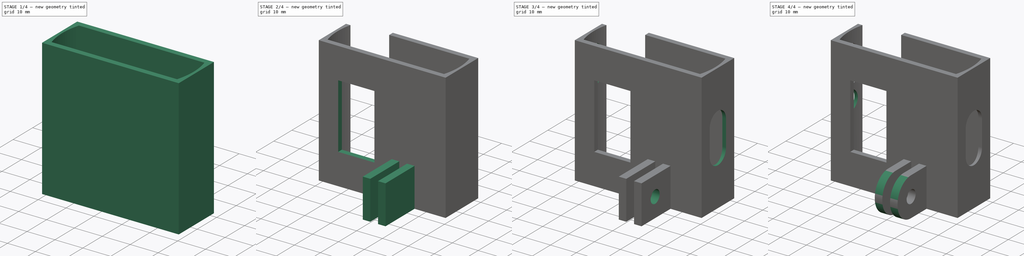
[diagram: build sequence overview — one tinted view per stage of 4, left to right]
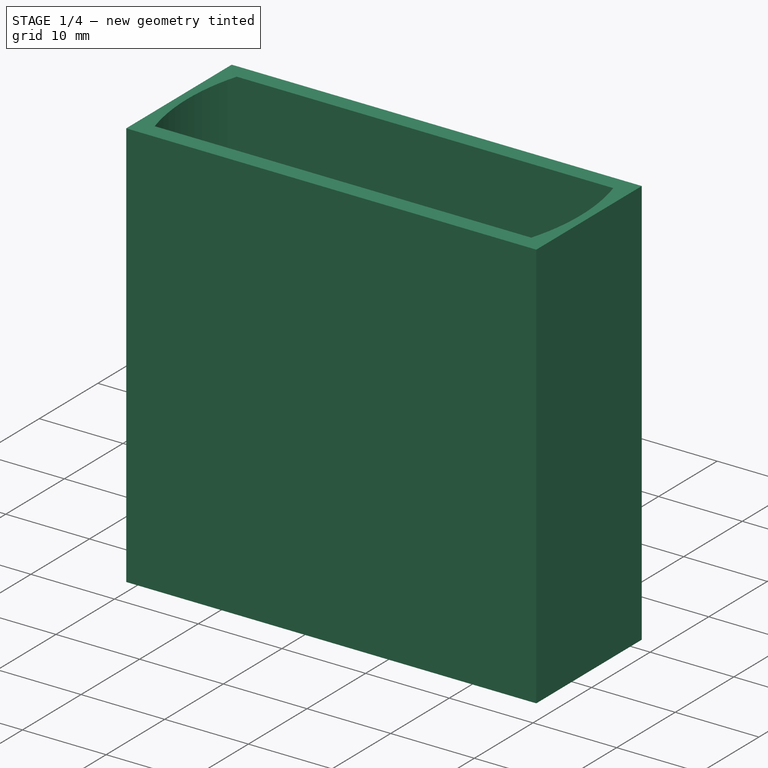
[diagram: stage 1 of 4 — iso view after this stage's code; geometry added in this stage tinted green]
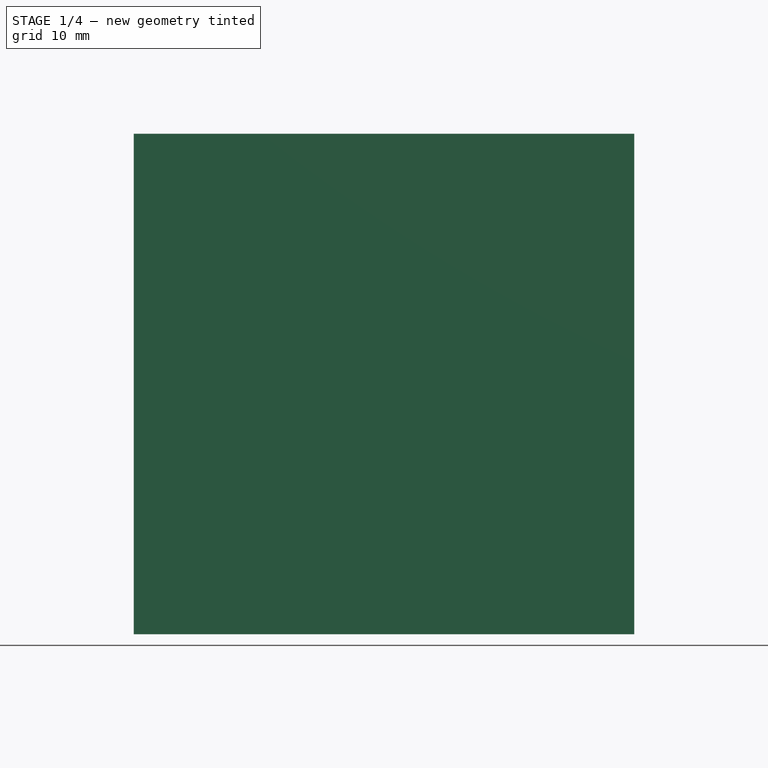
[diagram: stage 1 of 4 — front view after this stage's code; geometry added in this stage tinted green]
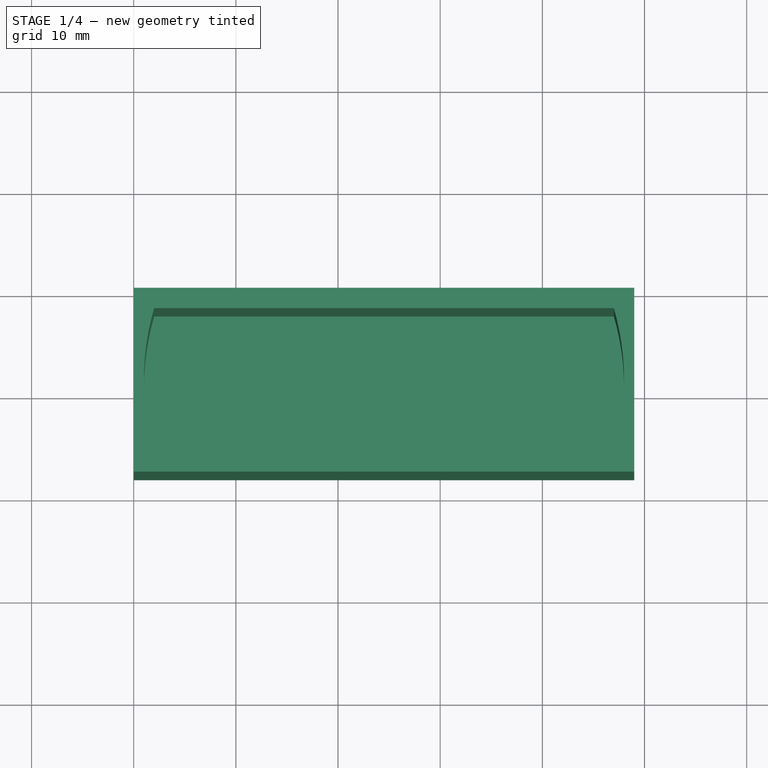
[diagram: stage 1 of 4 — top view after this stage's code; geometry added in this stage tinted green]
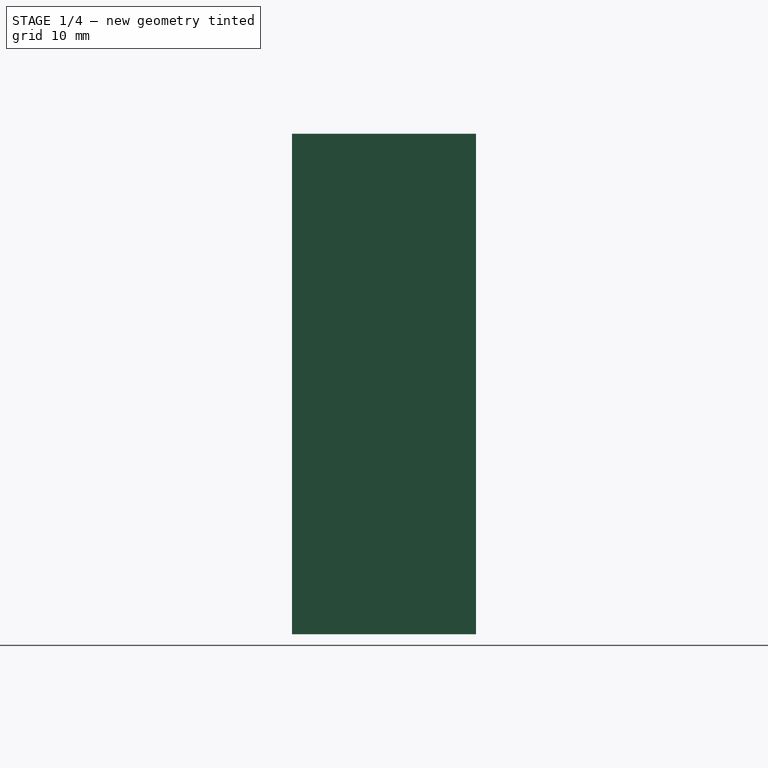
[diagram: stage 1 of 4 — right view after this stage's code; geometry added in this stage tinted green]
FCSTD DOCUMENT  (FreeCAD 0.21R33694 (Git))
Label: RodeMicMount
License: All rights reserved
LicenseURL: https://en.wikipedia.org/wiki/All_rights_reserved
objects: Sketcher::SketchObject×9, PartDesign::Pocket×7, PartDesign::Pad×2, PartDesign::Fillet×1, PartDesign::Body×1
note: 30 computed .brp shape members not serialized (recipe doc carries the construction recipe); baked Part::Feature solids carry a one-line shape summary decoded from their .brp

FEATURE [Sketcher::SketchObject] Sketch  label="Outer profile"
  FullyConstrained = true
  MapMode = 5
  Placement = pos=(0,0,0) rot=(1,0,0;1.5708rad)
  Support = -> [XZ_Plane]
  sketch-geometry (4):
    g0: LineSegment StartX=0 StartY=49 StartZ=0 EndX=49 EndY=49 EndZ=0
    g1: LineSegment StartX=49 StartY=49 StartZ=0 EndX=49 EndY=0 EndZ=0
    g2: LineSegment StartX=49 StartY=0 StartZ=0 EndX=0 EndY=0 EndZ=0
    g3: LineSegment StartX=0 StartY=0 StartZ=0 EndX=0 EndY=49 EndZ=0
  constraints (11):
    c: Coincident(g0,g1)
    c: Coincident(g1,g2)
    c: Coincident(g2,g3)
    c: Coincident(g3,g0)
    c: Horizontal(g0)
    c: Horizontal(g2)
    c: Vertical(g1)
    c: Vertical(g3)
    c: DistanceX(g0,g0) = 49
    c: Equal(g0,g1)
    c: Coincident(g2,g-1)
FEATURE [PartDesign::Pad] Pad
  Direction = (0,-1,-2e-16)
  Length = 18
  Length2 = 10
  Placement = pos=(0,0,0) rot=(1,0,0;1.5708rad)
  Profile = -> Sketch
  ReferenceAxis = -> Sketch [N_Axis]
  Type = 0
FEATURE [Sketcher::SketchObject] Sketch001  label="Mic profile"
  ExternalGeometry = -> [Pad]
  FullyConstrained = true
  MapMode = 5
  Placement = pos=(0,0,49) rot=(0,0,1;3.14159rad)
  Support = -> [Pad]
  sketch-geometry (6):
    g0: LineSegment StartX=-47 StartY=16 StartZ=0 EndX=-2 EndY=16 EndZ=0
    g1: LineSegment StartX=-2 StartY=2 StartZ=0 EndX=-47 EndY=2 EndZ=0
    g2: ArcOfCircle CenterX=-23 CenterY=9 CenterZ=0 NormalX=0 NormalY=0 NormalZ=1 AngleXU=0 Radius=25 StartAngle=2.8578 EndAngle=3.42539
    g3: ArcOfCircle CenterX=-26 CenterY=9 CenterZ=0 NormalX=0 NormalY=0 NormalZ=1 AngleXU=0 Radius=25 StartAngle=5.99939 EndAngle=6.56698
    g4: LineSegment StartX=-48 StartY=16 StartZ=0 EndX=-48 EndY=2 EndZ=0
    g5: LineSegment StartX=-1 StartY=16 StartZ=0 EndX=-1 EndY=2 EndZ=0
  constraints (22):
    c: Horizontal(g0)
    c: Horizontal(g1)
    c: Coincident(g2,g0)
    c: Coincident(g2,g1)
    c: Coincident(g3,g0)
    c: DistanceX(g0,g0) = 45
    c: Equal(g1,g0)
    c: Vertical(g0,g1)
    c: Coincident(g3,g1)
    c: DistanceY(g1,g0) = 14
    c: Vertical(g4)
    c: Tangent(g4,g2)
    c: Horizontal(g4,g0)
    c: DistanceX(g4,g0) = 1
    c: Vertical(g5)
    c: DistanceX(g0,g5) = 1
    c: Tangent(g3,g5)
    c: Horizontal(g0,g5)
    c: Horizontal(g1,g5)
    c: Horizontal(g1,g4)
    c: DistanceX(g1,g-6) = 2
    c: DistanceY(g-6,g1) = 2
FEATURE [PartDesign::Pocket] Pocket
  BaseFeature = -> Pad
  Direction = (0,2e-16,-1)
  Length = 47
  Length2 = 5
  Placement = pos=(0,0,0) rot=(1,0,0;1.5708rad)
  Profile = -> Sketch001
  ReferenceAxis = -> Sketch001 [N_Axis]
  Type = 0
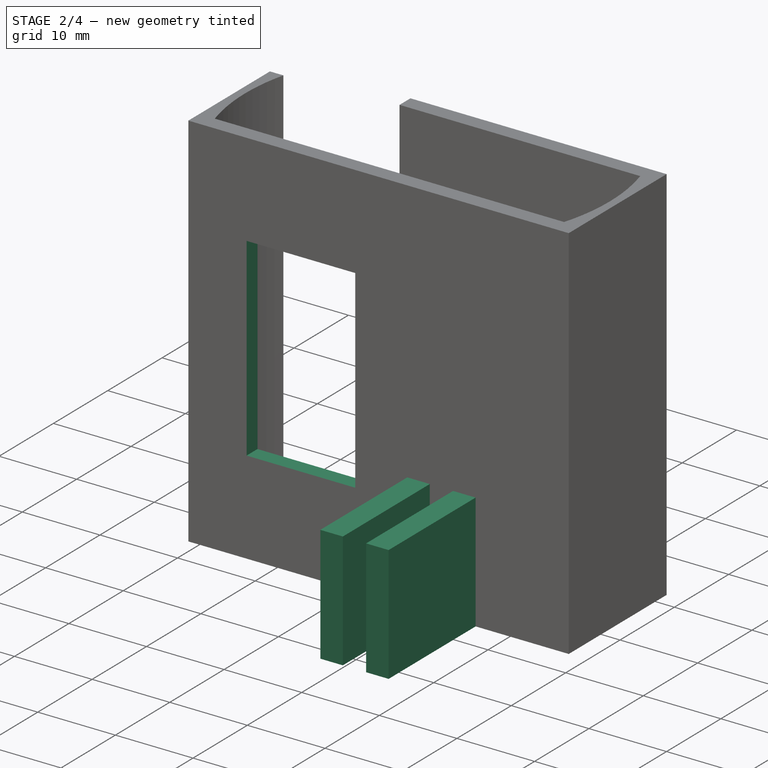
[diagram: stage 2 of 4 — iso view after this stage's code; geometry added in this stage tinted green]
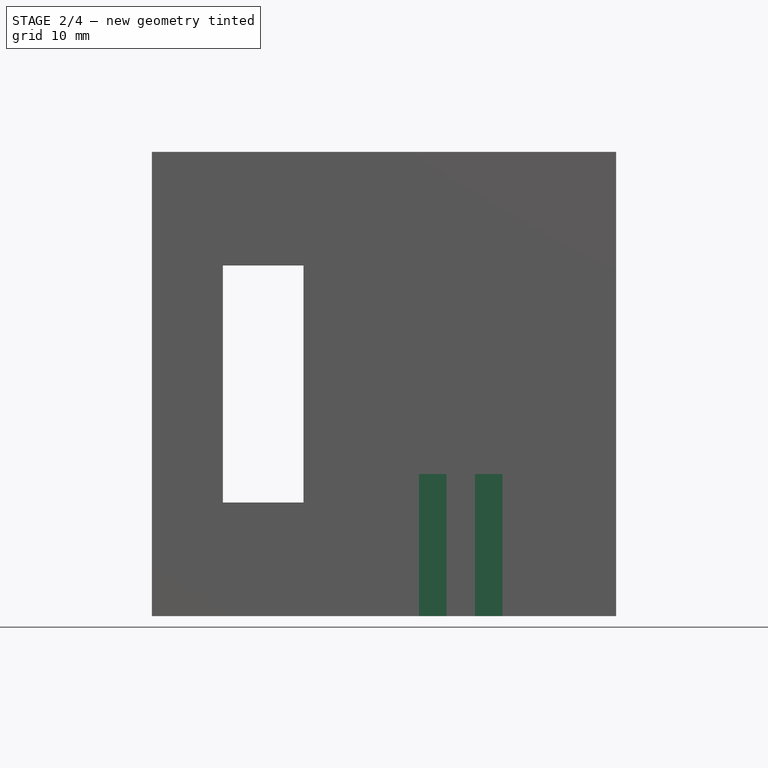
[diagram: stage 2 of 4 — front view after this stage's code; geometry added in this stage tinted green]
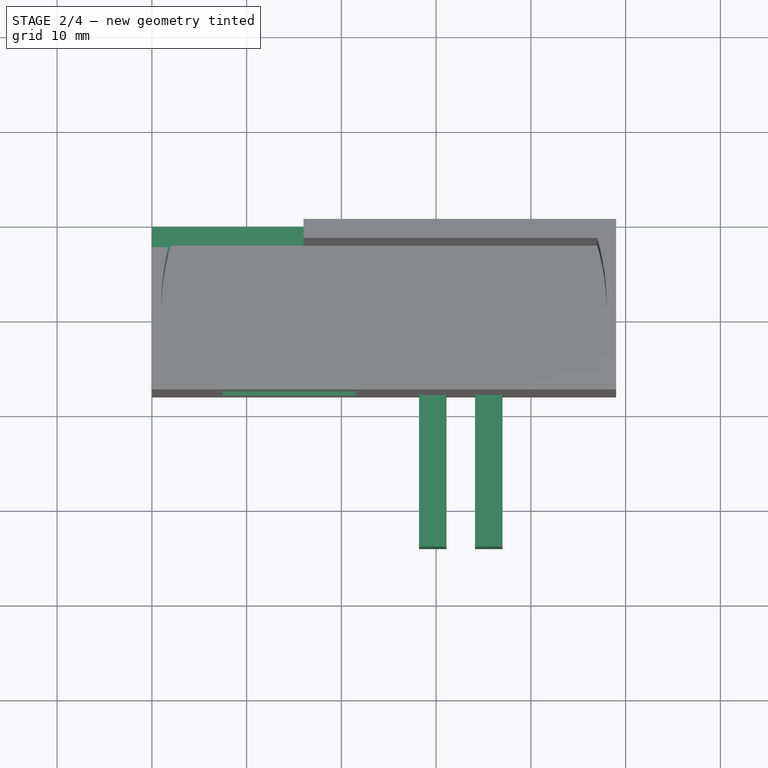
[diagram: stage 2 of 4 — top view after this stage's code; geometry added in this stage tinted green]
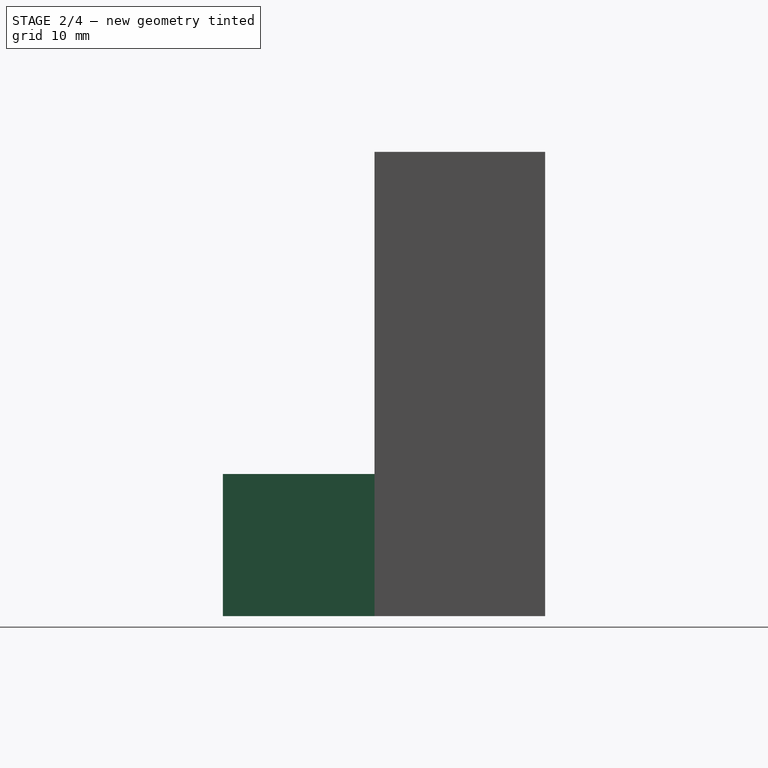
[diagram: stage 2 of 4 — right view after this stage's code; geometry added in this stage tinted green]
FEATURE [Sketcher::SketchObject] Sketch002  label="Display cutout"
  ExternalGeometry = -> [Pocket]
  FullyConstrained = true
  MapMode = 5
  Placement = pos=(0,-18,-4e-15) rot=(1,0,0;1.5708rad)
  Support = -> [Pocket]
  expr: Constraints[11] = (49 - 25) / 2
  sketch-geometry (4):
    g0: LineSegment StartX=7.5 StartY=37 StartZ=0 EndX=21.5 EndY=37 EndZ=0
    g1: LineSegment StartX=21.5 StartY=37 StartZ=0 EndX=21.5 EndY=12 EndZ=0
    g2: LineSegment StartX=21.5 StartY=12 StartZ=0 EndX=7.5 EndY=12 EndZ=0
    g3: LineSegment StartX=7.5 StartY=12 StartZ=0 EndX=7.5 EndY=37 EndZ=0
  constraints (12):
    c: Coincident(g0,g1)
    c: Coincident(g1,g2)
    c: Coincident(g2,g3)
    c: Coincident(g3,g0)
    c: Horizontal(g0)
    c: Horizontal(g2)
    c: Vertical(g1)
    c: Vertical(g3)
    c: DistanceX(g-6,g0) = 7.5
    c: DistanceX(g0,g0) = 14
    c: DistanceY(g1,g1) = 25
    c: DistanceY(g-6,g2) = 12
FEATURE [PartDesign::Pocket] Pocket001
  BaseFeature = -> Pocket
  Direction = (0,1,2e-16)
  Length = 5
  Length2 = 5
  Placement = pos=(0,0,0) rot=(1,0,0;1.5708rad)
  Profile = -> Sketch002
  ReferenceAxis = -> Sketch002 [N_Axis]
  Type = 0
FEATURE [Sketcher::SketchObject] Sketch003  label="Clip cutout"
  ExternalGeometry = -> [Pocket001]
  FullyConstrained = true
  MapMode = 5
  Placement = pos=(0,-1e-16,0) rot=(-1,0,0;1.5708rad)
  Support = -> [Pocket001]
  sketch-geometry (4):
    g0: LineSegment StartX=16 StartY=-49 StartZ=0 EndX=0 EndY=-49 EndZ=0
    g1: LineSegment StartX=0 StartY=-49 StartZ=0 EndX=0 EndY=-2.5 EndZ=0
    g2: LineSegment StartX=0 StartY=-2.5 StartZ=0 EndX=16 EndY=-2.5 EndZ=0
    g3: LineSegment StartX=16 StartY=-2.5 StartZ=0 EndX=16 EndY=-49 EndZ=0
  constraints (11):
    c: Horizontal(g0)
    c: Coincident(g0,g1)
    c: Vertical(g1)
    c: Coincident(g1,g2)
    c: Horizontal(g2)
    c: Vertical(g3)
    c: Coincident(g3,g0)
    c: DistanceX(g2,g2) = 16
    c: DistanceY(g1,g-4) = 2.5
    c: Coincident(g0,g-3)
    c: Coincident(g3,g2)
FEATURE [PartDesign::Pocket] Pocket002
  BaseFeature = -> Pocket001
  Direction = (0,-1,-2e-16)
  Length = 3
  Length2 = 5
  Placement = pos=(0,0,0) rot=(1,0,0;1.5708rad)
  Profile = -> Sketch003
  ReferenceAxis = -> Sketch003 [N_Axis]
  Type = 0
FEATURE [Sketcher::SketchObject] Sketch004  label="GoPro mount"
  ExternalGeometry = -> [Pocket002]
  FullyConstrained = true
  MapMode = 5
  Placement = pos=(0,-18,-4e-15) rot=(1,0,0;1.5708rad)
  Support = -> [Pocket002]
  sketch-geometry (8):
    g0: LineSegment StartX=28.2 StartY=15 StartZ=0 EndX=31.1 EndY=15 EndZ=0
    g1: LineSegment StartX=31.1 StartY=15 StartZ=0 EndX=31.1 EndY=3.6e-15 EndZ=0
    g2: LineSegment StartX=31.1 StartY=3.6e-15 StartZ=0 EndX=28.2 EndY=3.6e-15 EndZ=0
    g3: LineSegment StartX=28.2 StartY=3.6e-15 StartZ=0 EndX=28.2 EndY=15 EndZ=0
    g4: LineSegment StartX=34.1 StartY=15 StartZ=0 EndX=37 EndY=15 EndZ=0
    g5: LineSegment StartX=37 StartY=15 StartZ=0 EndX=37 EndY=3.6e-15 EndZ=0
    g6: LineSegment StartX=37 StartY=3.6e-15 StartZ=0 EndX=34.1 EndY=3.6e-15 EndZ=0
    g7: LineSegment StartX=34.1 StartY=3.6e-15 StartZ=0 EndX=34.1 EndY=15 EndZ=0
  constraints (24):
    c: Coincident(g0,g1)
    c: Coincident(g1,g2)
    c: Coincident(g2,g3)
    c: Coincident(g3,g0)
    c: Horizontal(g0)
    c: Horizontal(g2)
    c: Vertical(g1)
    c: Vertical(g3)
    c: Coincident(g4,g5)
    c: Coincident(g5,g6)
    c: Coincident(g6,g7)
    c: Coincident(g7,g4)
    c: Horizontal(g4)
    c: Horizontal(g6)
    c: Vertical(g5)
    c: Vertical(g7)
    c: Horizontal(g1,g6)
    c: Equal(g0,g4)
    c: Equal(g7,g1)
    c: DistanceX(g4,g4) = 2.9
    c: DistanceX(g0,g4) = 3
    c: Horizontal(g-3,g2)
    c: DistanceY(g5,g5) = 15
    c: DistanceX(g5,g-3) = 12
FEATURE [PartDesign::Pad] Pad001
  BaseFeature = -> Pocket002
  Direction = (0,-1,-2e-16)
  Length = 16
  Length2 = 10
  Placement = pos=(0,0,0) rot=(1,0,0;1.5708rad)
  Profile = -> Sketch004
  ReferenceAxis = -> Sketch004 [N_Axis]
  Type = 0
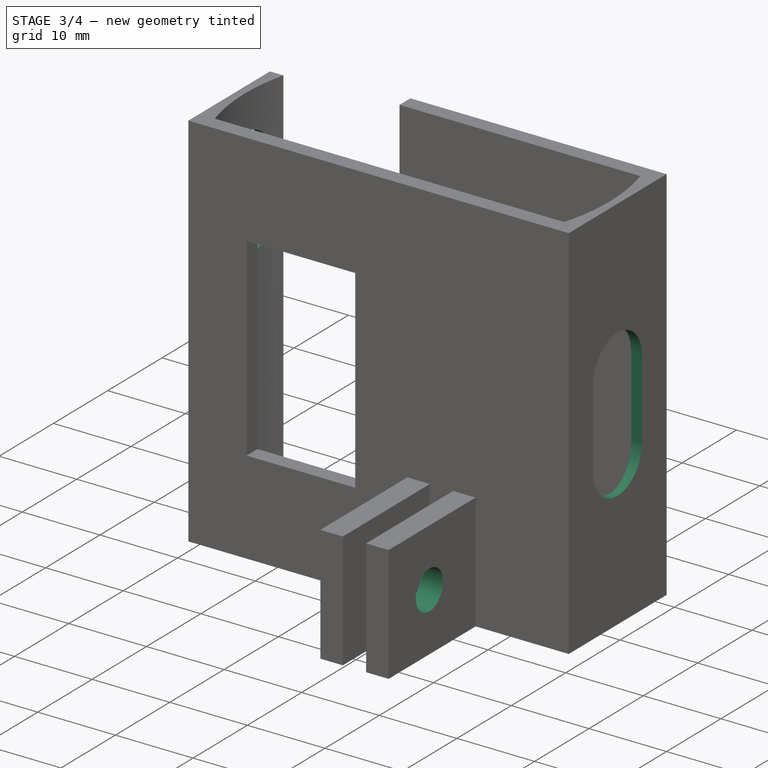
[diagram: stage 3 of 4 — iso view after this stage's code; geometry added in this stage tinted green]
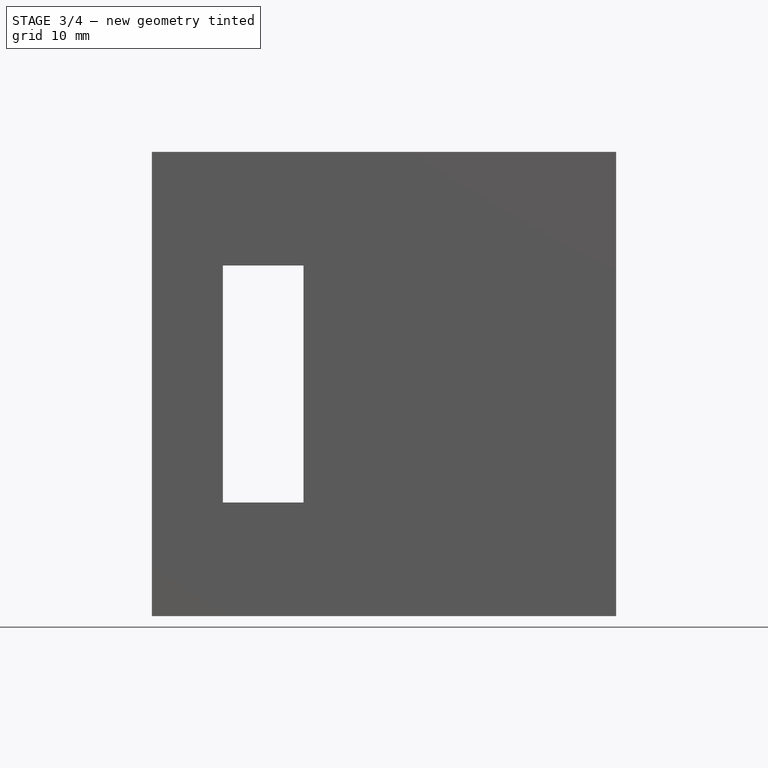
[diagram: stage 3 of 4 — front view after this stage's code; geometry added in this stage tinted green]
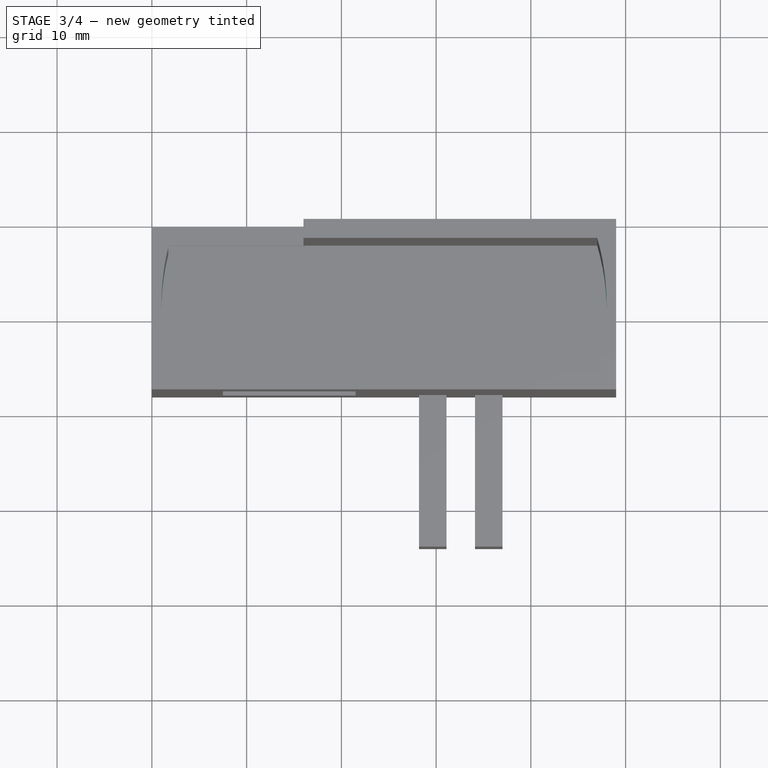
[diagram: stage 3 of 4 — top view after this stage's code; geometry added in this stage tinted green]
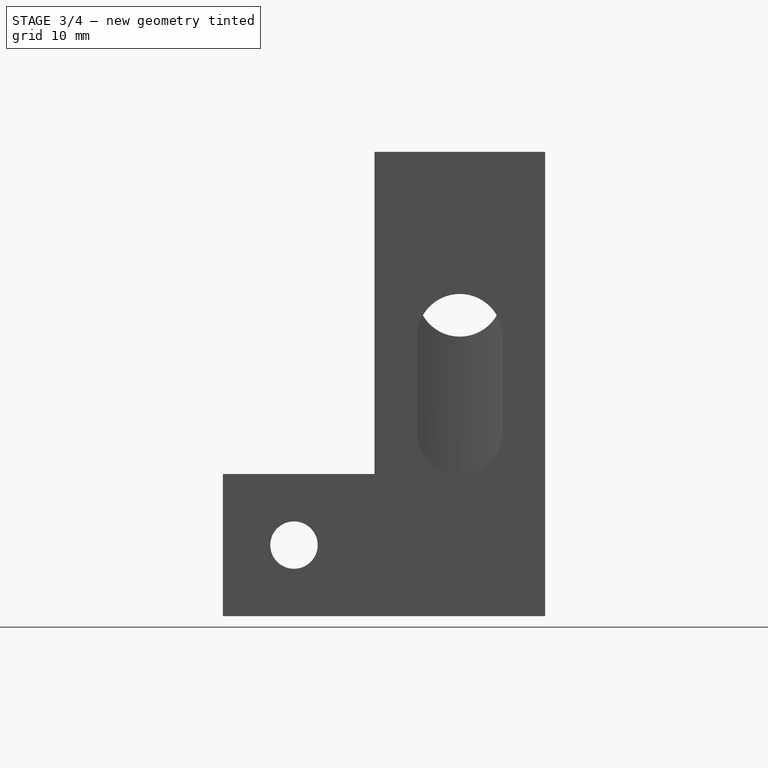
[diagram: stage 3 of 4 — right view after this stage's code; geometry added in this stage tinted green]
FEATURE [Sketcher::SketchObject] Sketch005  label="GoPro mount hole"
  ExternalGeometry = -> [Pad001]
  FullyConstrained = true
  MapMode = 5
  Placement = pos=(28.2,0,0) rot=(0.707107,0,-0.707107;3.14159rad)
  Support = -> [Pad001]
  expr: Constraints[1] = 15 / 2
  expr: Constraints[2] = 5 + 5 / 2
  sketch-geometry (1):
    g0: Circle CenterX=-7.5 CenterY=26.5 CenterZ=0 NormalX=0 NormalY=0 NormalZ=1 AngleXU=0 Radius=2.5
  constraints (3):
    c: Diameter(g0) = 5
    c: DistanceX(g-3,g0) = 7.5
    c: DistanceY(g0,g-3) = 7.5
FEATURE [PartDesign::Pocket] Pocket003
  BaseFeature = -> Pad001
  Direction = (1,0,2e-16)
  Length = 10
  Length2 = 5
  Placement = pos=(0,0,0) rot=(1,0,0;1.5708rad)
  Profile = -> Sketch005
  ReferenceAxis = -> Sketch005 [N_Axis]
  Type = 1
FEATURE [Sketcher::SketchObject] Sketch006  label="Power button cutout"
  FullyConstrained = true
  MapMode = 5
  Placement = pos=(49,0,0) rot=(0.707107,0,0.707107;3.14159rad)
  Support = -> [Pocket003]
  expr: Constraints[8] = (49 - 10) / 2
  sketch-geometry (4):
    g0: ArcOfCircle CenterX=19.5 CenterY=9 CenterZ=0 NormalX=0 NormalY=0 NormalZ=1 AngleXU=0 Radius=4.5 StartAngle=1.5708 EndAngle=4.71239
    g1: ArcOfCircle CenterX=29.5 CenterY=9 CenterZ=0 NormalX=0 NormalY=0 NormalZ=1 AngleXU=0 Radius=4.5 StartAngle=4.71239 EndAngle=7.85398
    g2: LineSegment StartX=19.5 StartY=4.5 StartZ=0 EndX=29.5 EndY=4.5 EndZ=0
    g3: LineSegment StartX=29.5 StartY=13.5 StartZ=0 EndX=19.5 EndY=13.5 EndZ=0
  constraints (10):
    c: Tangent(g0,g2) = -1.5708
    c: Tangent(g2,g1) = -1.5708
    c: Tangent(g1,g3) = -1.5708
    c: Tangent(g3,g0) = -1.5708
    c: Equal(g0,g1)
    c: Horizontal(g2)
    c: DistanceY(g1,g1) = 9
    c: DistanceY(g-1,g0) = 4.5
    c: DistanceX(g-1,g0) = 19.5
    c: DistanceX(g0,g1) = 10
FEATURE [PartDesign::Pocket] Pocket004
  BaseFeature = -> Pocket003
  Direction = (-1,0,2e-16)
  Length = 5
  Length2 = 5
  Placement = pos=(0,0,0) rot=(1,0,0;1.5708rad)
  Profile = -> Sketch006
  ReferenceAxis = -> Sketch006 [N_Axis]
  Type = 0
FEATURE [Sketcher::SketchObject] Sketch007  label="Mic/gain cutout"
  FullyConstrained = true
  MapMode = 5
  Placement = pos=(0,0,0) rot=(0.707107,0,-0.707107;3.14159rad)
  Support = -> [Pocket004]
  expr: Constraints[6] = 18 / 2
  expr: Constraints[8] = 49 - 15
  sketch-geometry (4):
    g0: ArcOfCircle CenterX=-40 CenterY=9 CenterZ=0 NormalX=0 NormalY=0 NormalZ=1 AngleXU=0 Radius=4.5 StartAngle=1.5708 EndAngle=4.71239
    g1: ArcOfCircle CenterX=-34 CenterY=9 CenterZ=0 NormalX=0 NormalY=0 NormalZ=1 AngleXU=0 Radius=4.5 StartAngle=4.71239 EndAngle=7.85398
    g2: LineSegment StartX=-40 StartY=4.5 StartZ=0 EndX=-34 EndY=4.5 EndZ=0
    g3: LineSegment StartX=-34 StartY=13.5 StartZ=0 EndX=-40 EndY=13.5 EndZ=0
  constraints (10):
    c: Tangent(g0,g2) = -1.5708
    c: Tangent(g2,g1) = -1.5708
    c: Tangent(g1,g3) = -1.5708
    c: Tangent(g3,g0) = -1.5708
    c: Equal(g0,g1)
    c: Horizontal(g2)
    c: DistanceY(g-1,g1) = 9
    c: DistanceY(g1,g1) = 9
    c: DistanceX(g1,g-1) = 34
    c: DistanceX(g0,g1) = 6
FEATURE [PartDesign::Pocket] Pocket005
  BaseFeature = -> Pocket004
  Direction = (1,0,2e-16)
  Length = 5
  Length2 = 5
  Placement = pos=(0,0,0) rot=(1,0,0;1.5708rad)
  Profile = -> Sketch007
  ReferenceAxis = -> Sketch007 [N_Axis]
  Type = 0
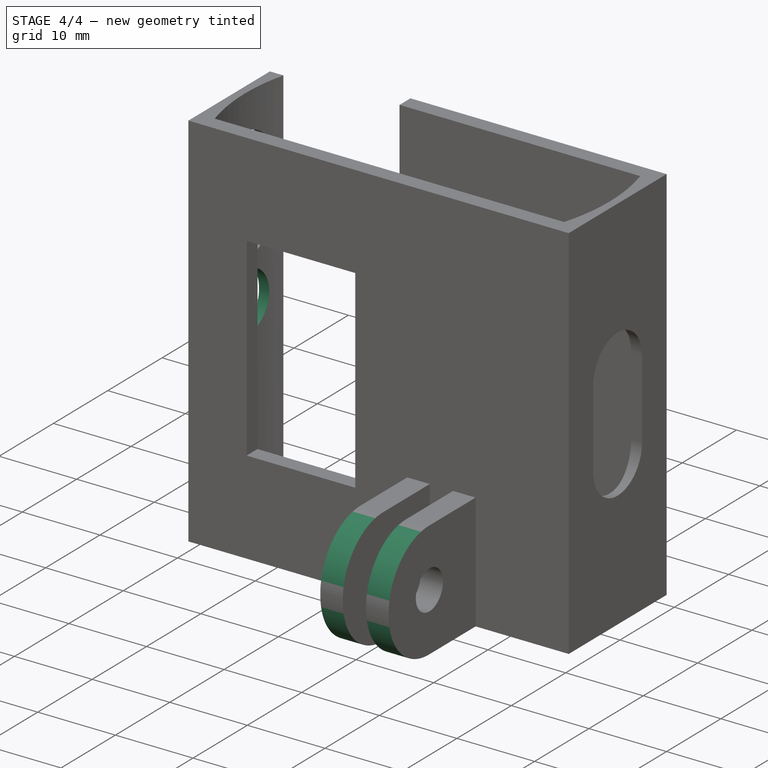
[diagram: stage 4 of 4 — iso view after this stage's code; geometry added in this stage tinted green]
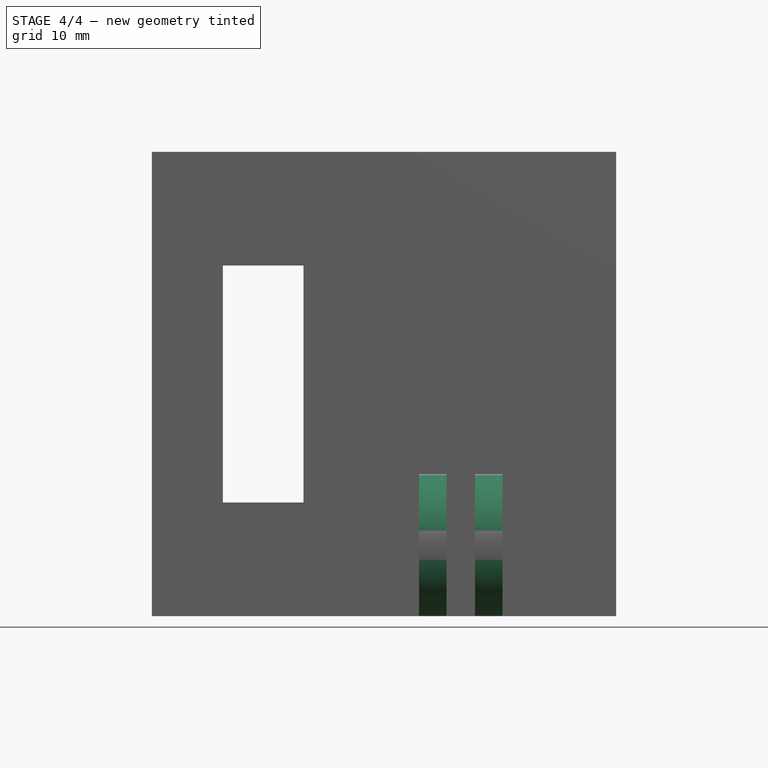
[diagram: stage 4 of 4 — front view after this stage's code; geometry added in this stage tinted green]
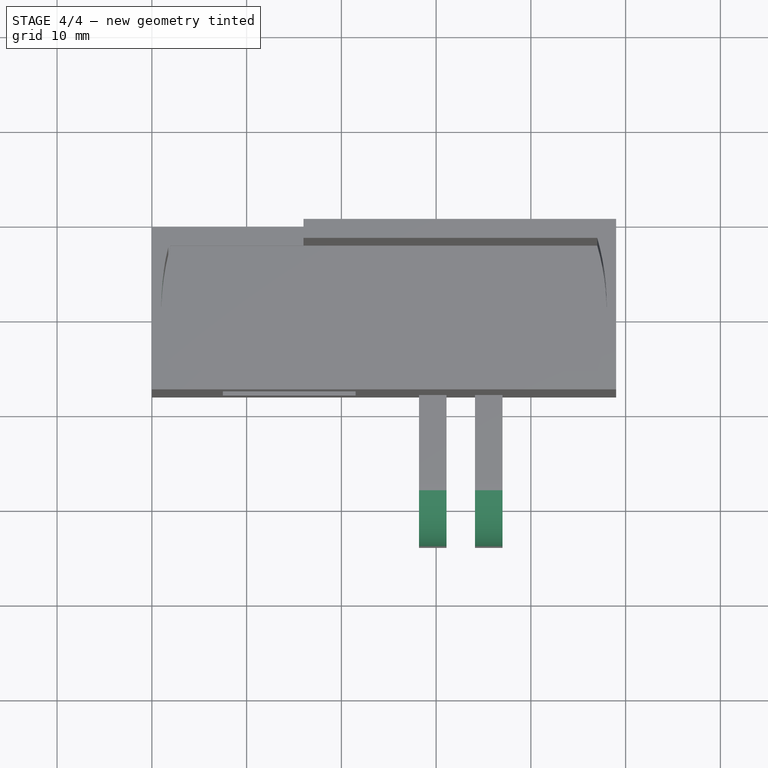
[diagram: stage 4 of 4 — top view after this stage's code; geometry added in this stage tinted green]
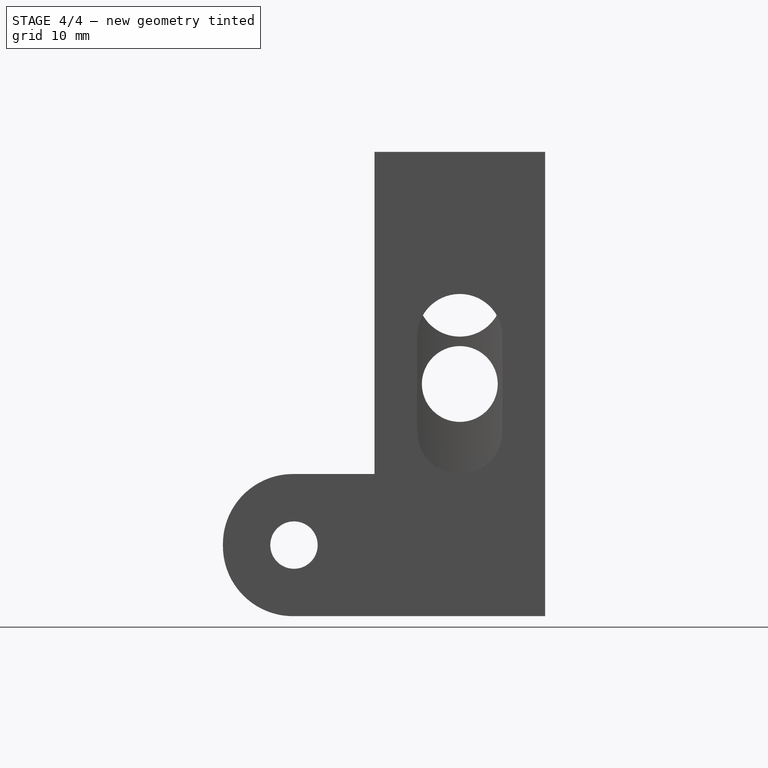
[diagram: stage 4 of 4 — right view after this stage's code; geometry added in this stage tinted green]
FEATURE [PartDesign::Fillet] Fillet
  Base = -> Pocket005 [Edge91,Edge100,Edge104,Edge105]
  BaseFeature = -> Pocket005
  Placement = pos=(0,0,0) rot=(1,0,0;1.5708rad)
  Radius = 7.4
  SupportTransform = false
  UseAllEdges = false
FEATURE [Sketcher::SketchObject] Sketch008  label="Mic cutout"
  ExternalGeometry = -> [Fillet]
  FullyConstrained = true
  MapMode = 5
  Placement = pos=(0,0,0) rot=(0.707107,0,-0.707107;3.14159rad)
  Support = -> [Fillet]
  sketch-geometry (3):
    g0: Circle CenterX=-24.5 CenterY=9 CenterZ=0 NormalX=0 NormalY=0 NormalZ=1 AngleXU=0 Radius=4
    g1: LineSegment StartX=-49 StartY=18 StartZ=0 EndX=-24.5 EndY=18 EndZ=0
    g2: LineSegment StartX=-24.5 StartY=18 StartZ=0 EndX=-3.6e-15 EndY=18 EndZ=0
  constraints (8):
    c: Horizontal(g-3,g0)
    c: Diameter(g0) = 8
    c: Coincident(g1,g-4)
    c: Horizontal(g1)
    c: Coincident(g2,g-4)
    c: Equal(g1,g2)
    c: Coincident(g1,g2)
    c: Vertical(g0,g1)
FEATURE [PartDesign::Pocket] Pocket006  label="Optional Mic Cutout"
  BaseFeature = -> Fillet
  Direction = (1,0,2e-16)
  Length = 5
  Length2 = 5
  Placement = pos=(0,0,0) rot=(1,0,0;1.5708rad)
  Profile = -> Sketch008
  ReferenceAxis = -> Sketch008 [N_Axis]
  Type = 0
FEATURE [PartDesign::Body] Body
  Group = -> [Sketch,Pad,Sketch001,Pocket,Sketch002,Pocket001,Sketch003,Pocket002,Sketch004,Pad001,Sketch005,Pocket003,Sketch006,Pocket004,Sketch007,Pocket005,Fillet,Sketch008,Pocket006]
  Origin = -> Origin
  Tip = -> Pocket006
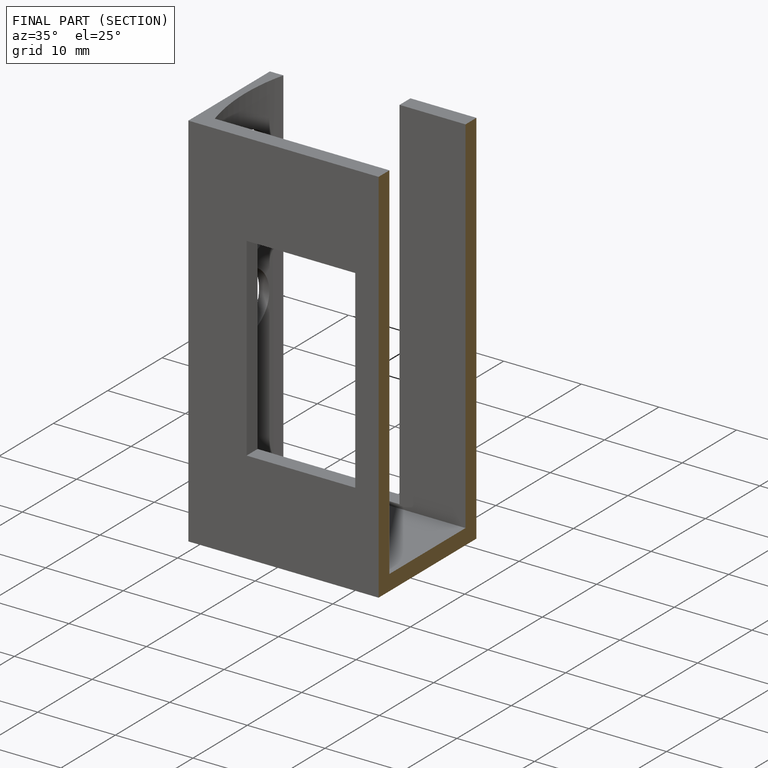
[diagram: finished part — half-section view (interior)]
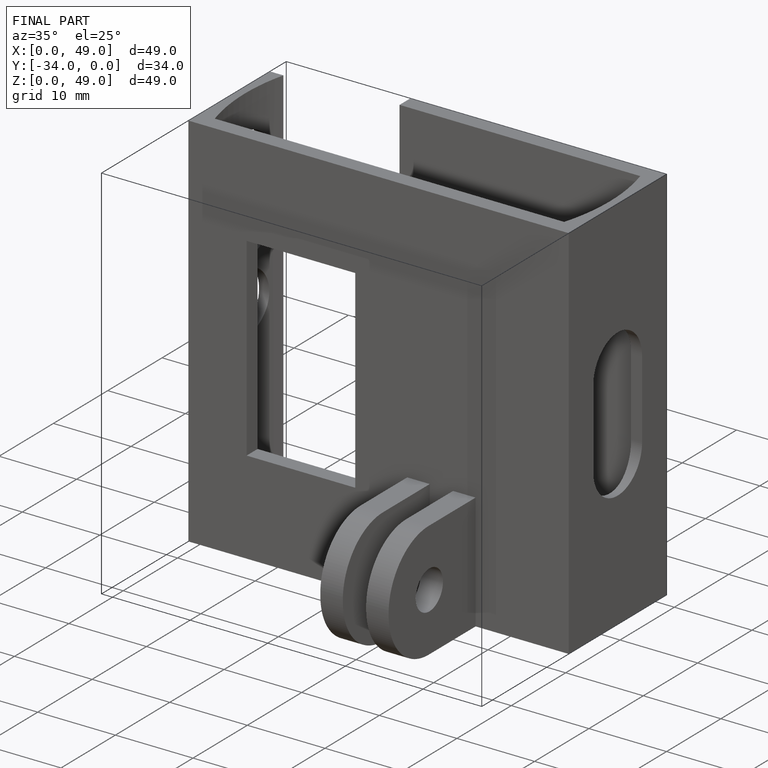
[diagram: finished part — iso view with bounding-box wireframe]
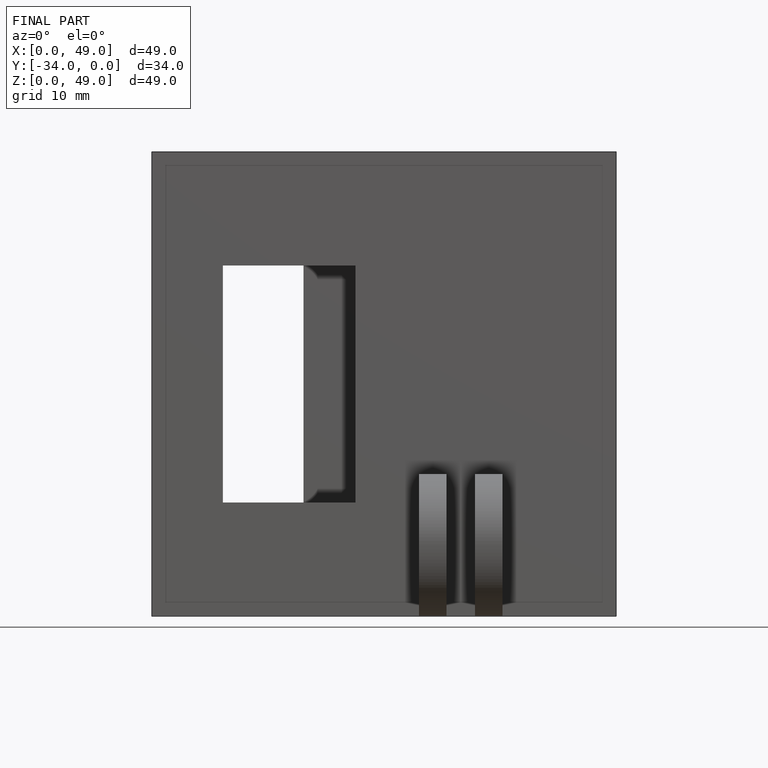
[diagram: finished part — front view with bounding-box wireframe]
